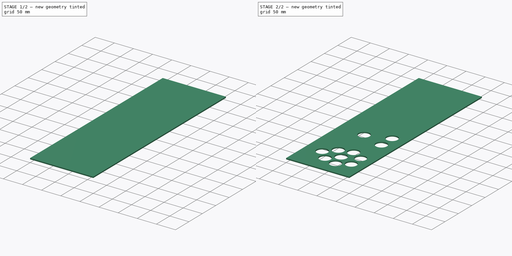
[diagram: build sequence overview — one tinted view per stage of 2, left to right]
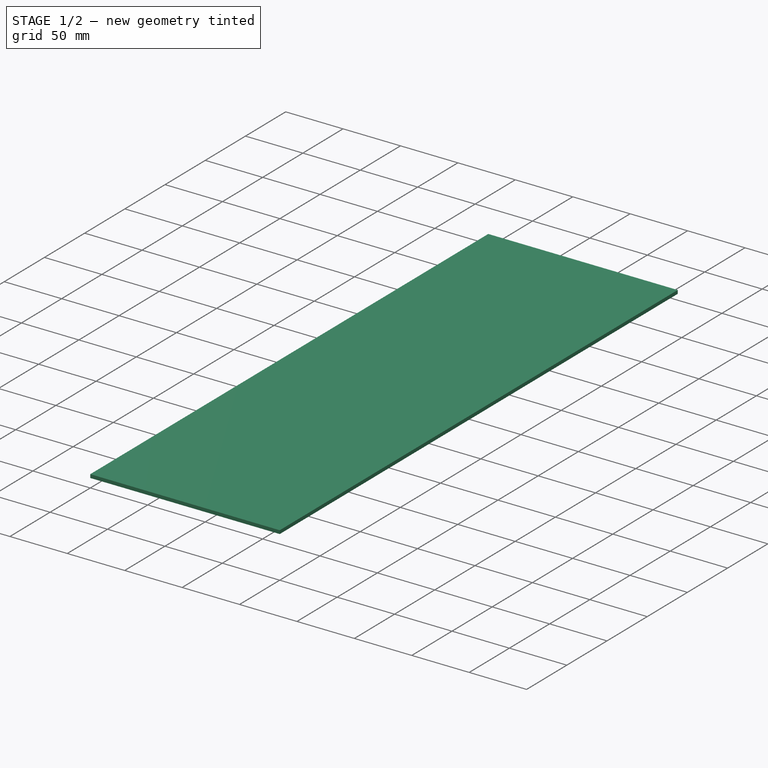
[diagram: stage 1 of 2 — iso view after this stage's code; geometry added in this stage tinted green]
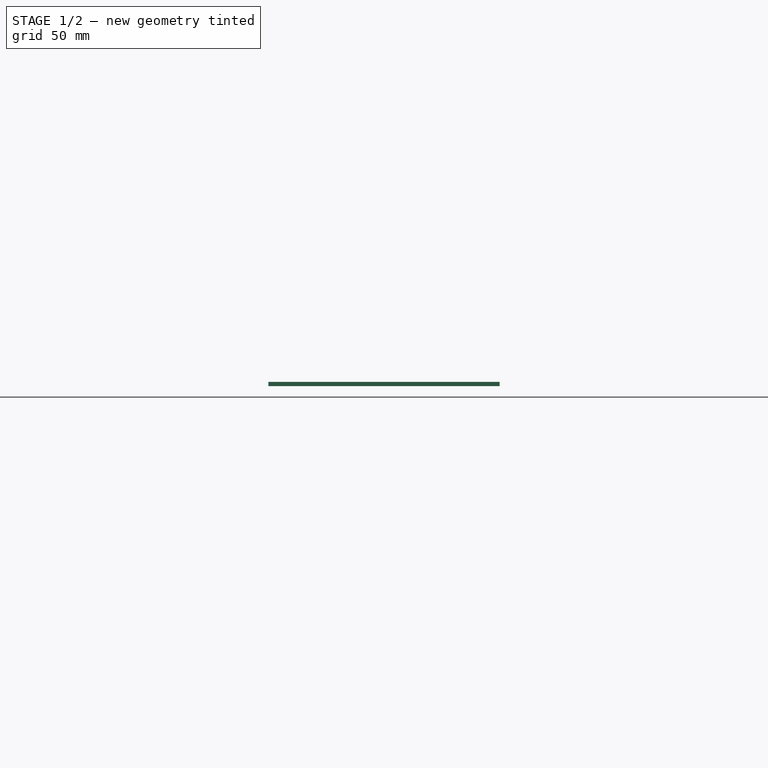
[diagram: stage 1 of 2 — front view after this stage's code; geometry added in this stage tinted green]
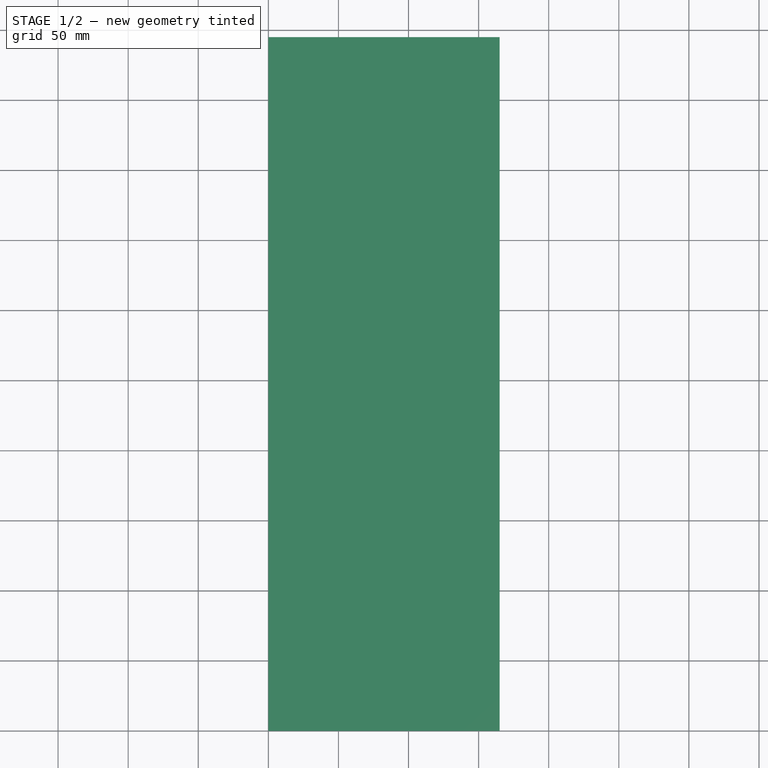
[diagram: stage 1 of 2 — top view after this stage's code; geometry added in this stage tinted green]
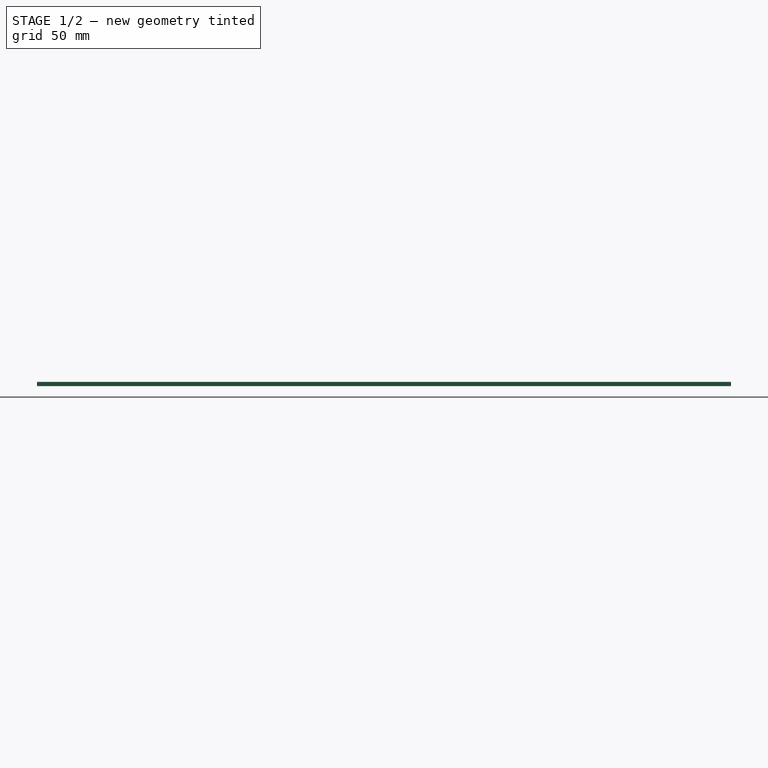
[diagram: stage 1 of 2 — right view after this stage's code; geometry added in this stage tinted green]
FCSTD DOCUMENT  (FreeCAD 0.20R29177 (Git))
Label: 1001_keyboard_500_3_Duo_LASER
License: All rights reserved
LicenseURL: http://en.wikipedia.org/wiki/All_rights_reserved
objects: Sketcher::SketchObject×2, PartDesign::Pad×1, PartDesign::Pocket×1, PartDesign::Body×1
note: 7 computed .brp shape members not serialized (recipe doc carries the construction recipe); baked Part::Feature solids carry a one-line shape summary decoded from their .brp

FEATURE [Sketcher::SketchObject] Sketch
  FullyConstrained = true
  MapMode = 5
  Support = -> [XY_Plane]
  sketch-geometry (5):
    g0: LineSegment StartX=0 StartY=495 StartZ=0 EndX=165 EndY=495 EndZ=0
    g1: LineSegment StartX=165 StartY=495 StartZ=0 EndX=165 EndY=0 EndZ=0
    g2: LineSegment StartX=165 StartY=0 StartZ=0 EndX=0 EndY=0 EndZ=0
    g3: LineSegment StartX=0 StartY=0 StartZ=0 EndX=0 EndY=247.5 EndZ=0
    g4: LineSegment StartX=0 StartY=247.5 StartZ=0 EndX=0 EndY=495 EndZ=0
  constraints (14):
    c: Coincident(g0,g1)
    c: Coincident(g1,g2)
    c: Horizontal(g0)
    c: Horizontal(g2)
    c: Vertical(g1)
    c: DistanceY(g1,g1) = 495
    c: DistanceX(g0,g0) = 165
    c: Coincident(g3,g2)
    c: Coincident(g4,g0)
    c: Equal(g3,g4)
    c: Vertical(g4)
    c: Vertical(g3)
    c: Coincident(g3,g4)
    c: Coincident(g2,g-1)
FEATURE [PartDesign::Pad] Pad
  AllowMultiFace = false
  Direction = (0,0,1)
  Length = 3
  Length2 = 100
  Profile = -> Sketch
  ReferenceAxis = -> Sketch [N_Axis]
  Type = 0
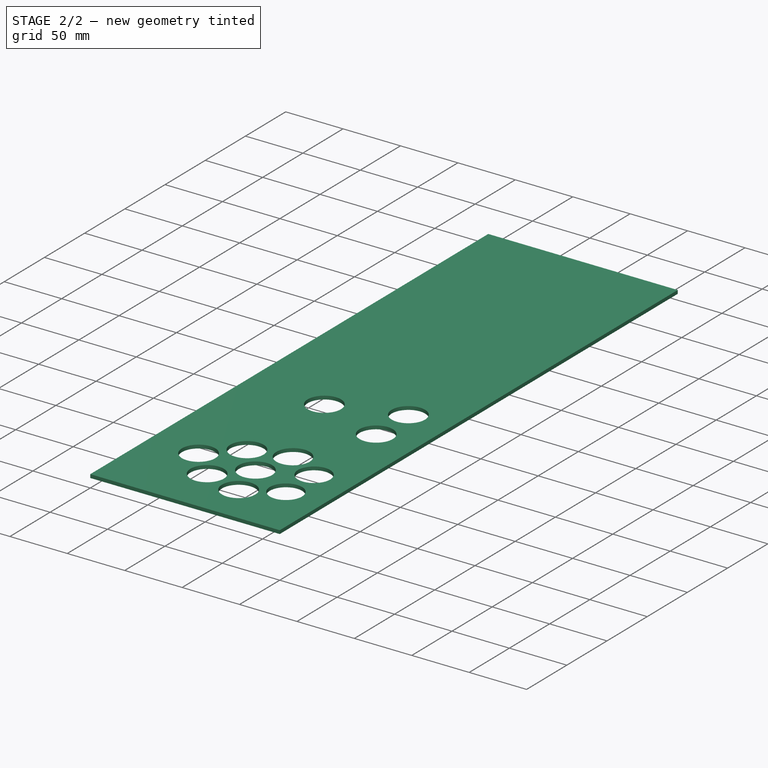
[diagram: stage 2 of 2 — iso view after this stage's code; geometry added in this stage tinted green]
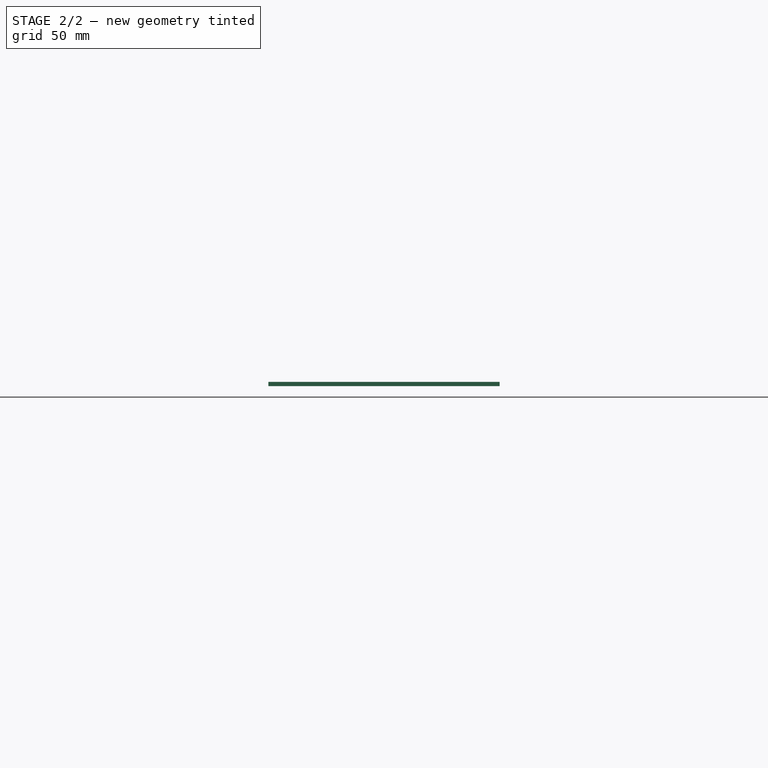
[diagram: stage 2 of 2 — front view after this stage's code; geometry added in this stage tinted green]
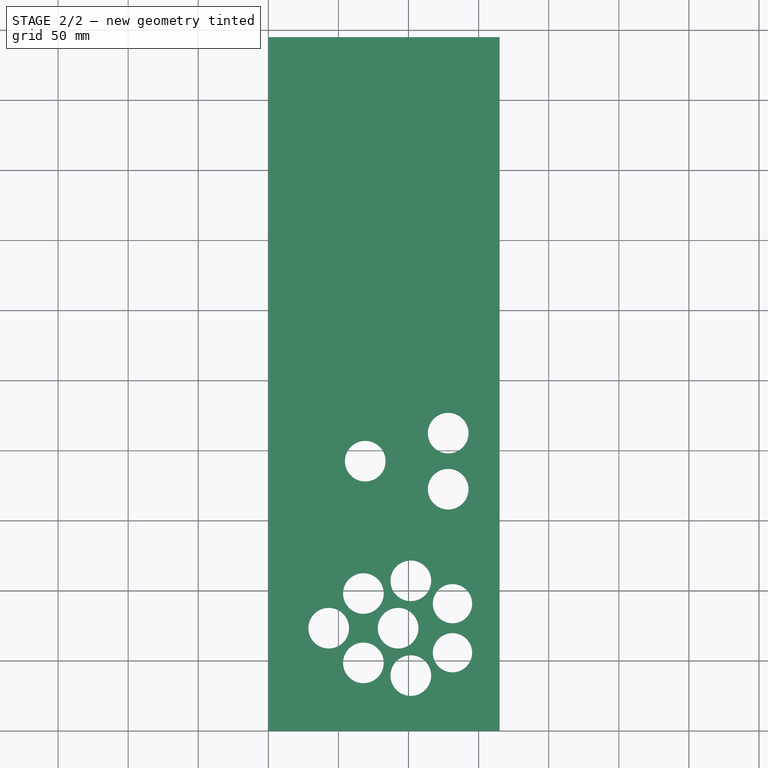
[diagram: stage 2 of 2 — top view after this stage's code; geometry added in this stage tinted green]
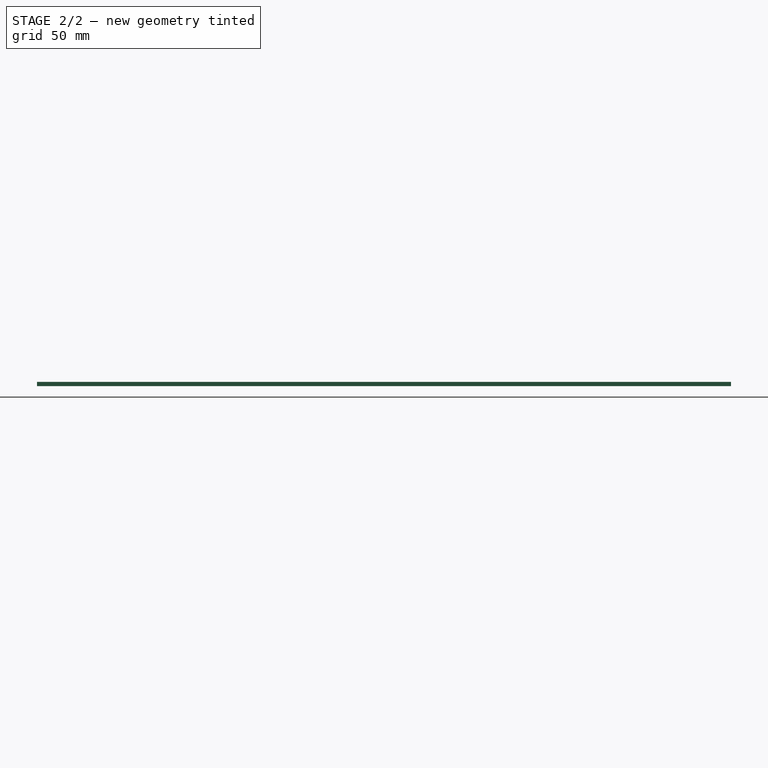
[diagram: stage 2 of 2 — right view after this stage's code; geometry added in this stage tinted green]
FEATURE [Sketcher::SketchObject] Sketch001
  FullyConstrained = false
  MapMode = 5
  Placement = pos=(0,0,3) rot=(0,0,1;0rad)
  Support = -> [Pad]
  sketch-geometry (38):
    g0: LineSegment StartX=25 StartY=0 StartZ=0 EndX=0 EndY=0 EndZ=0
    g1: LineSegment StartX=165 StartY=0 StartZ=0 EndX=25 EndY=0 EndZ=0
    g2: Circle CenterX=69.129 CenterY=192.435 CenterZ=0 NormalX=0 NormalY=0 NormalZ=1 AngleXU=0 Radius=14.5
    g3: Circle CenterX=43.0634 CenterY=73.2616 CenterZ=0 NormalX=0 NormalY=0 NormalZ=1 AngleXU=0 Radius=14.5
    g4: Circle CenterX=67.8121 CenterY=98.0103 CenterZ=0 NormalX=0 NormalY=0 NormalZ=1 AngleXU=0 Radius=14.5
    g5: Circle CenterX=67.8121 CenterY=48.5129 CenterZ=0 NormalX=0 NormalY=0 NormalZ=1 AngleXU=0 Radius=14.5
    g6: Circle CenterX=92.5609 CenterY=73.2616 CenterZ=0 NormalX=0 NormalY=0 NormalZ=1 AngleXU=0 Radius=14.5
    g7: Circle CenterX=101.62 CenterY=107.069 CenterZ=0 NormalX=0 NormalY=0 NormalZ=1 AngleXU=0 Radius=14.5
    g8: Circle CenterX=101.62 CenterY=39.4542 CenterZ=0 NormalX=0 NormalY=0 NormalZ=1 AngleXU=0 Radius=14.5
    g9: LineSegment StartX=43.0634 StartY=73.2616 StartZ=0 EndX=67.8121 EndY=98.0103 EndZ=0
    g10: LineSegment StartX=67.8121 StartY=98.0103 StartZ=0 EndX=101.62 EndY=107.069 EndZ=0
    g11: LineSegment StartX=101.62 StartY=107.069 StartZ=0 EndX=92.5609 EndY=73.2616 EndZ=0
    g12: LineSegment StartX=92.5609 StartY=73.2616 StartZ=0 EndX=67.8121 EndY=98.0103 EndZ=0
    g13: LineSegment StartX=92.5609 StartY=73.2616 StartZ=0 EndX=67.8121 EndY=48.5129 EndZ=0
    g14: LineSegment StartX=67.8121 StartY=48.5129 StartZ=0 EndX=43.0634 EndY=73.2616 EndZ=0
    g15: LineSegment StartX=67.8121 StartY=48.5129 StartZ=0 EndX=101.62 EndY=39.4542 EndZ=0
    g16: LineSegment StartX=101.62 StartY=39.4542 StartZ=0 EndX=92.5609 EndY=73.2616 EndZ=0
    g17: LineSegment StartX=67.8121 StartY=48.5129 StartZ=0 EndX=67.8121 EndY=98.0103 EndZ=0
    g18: Circle CenterX=128.286 CenterY=172.435 CenterZ=0 NormalX=0 NormalY=0 NormalZ=1 AngleXU=0 Radius=14.5
    g19: Circle CenterX=128.286 CenterY=212.435 CenterZ=0 NormalX=0 NormalY=0 NormalZ=1 AngleXU=0 Radius=14.5
    g20: Circle CenterX=131.362 CenterY=90.7616 CenterZ=0 NormalX=0 NormalY=0 NormalZ=1 AngleXU=0 Radius=14
    g21: Circle CenterX=131.362 CenterY=55.7616 CenterZ=0 NormalX=0 NormalY=0 NormalZ=1 AngleXU=0 Radius=14
    g22: LineSegment StartX=131.362 StartY=55.7616 StartZ=0 EndX=131.362 EndY=90.7616 EndZ=0
    g23: LineSegment StartX=128.286 StartY=172.435 StartZ=0 EndX=69.129 EndY=192.435 EndZ=0
    g24: LineSegment StartX=69.129 StartY=192.435 StartZ=0 EndX=128.286 EndY=212.435 EndZ=0
    g25: LineSegment StartX=43.0634 StartY=73.2616 StartZ=0 EndX=92.5609 EndY=73.2616 EndZ=0
    g26: LineSegment StartX=42.129 StartY=239.935 StartZ=0 EndX=96.129 EndY=239.935 EndZ=0
    g27: LineSegment StartX=96.129 StartY=239.935 StartZ=0 EndX=96.129 EndY=144.935 EndZ=0
    g28: LineSegment StartX=96.129 StartY=144.935 StartZ=0 EndX=42.129 EndY=144.935 EndZ=0
    g29: LineSegment StartX=42.129 StartY=144.935 StartZ=0 EndX=42.129 EndY=239.935 EndZ=0
    g30: LineSegment StartX=96.129 StartY=144.935 StartZ=0 EndX=69.129 EndY=192.435 EndZ=0
    g31: LineSegment StartX=69.129 StartY=192.435 StartZ=0 EndX=42.129 EndY=239.935 EndZ=0
    g32: LineSegment StartX=101.62 StartY=39.4542 StartZ=0 EndX=131.362 EndY=55.7616 EndZ=0
    g33: LineSegment StartX=131.362 StartY=90.7616 StartZ=0 EndX=101.62 EndY=107.069 EndZ=0
    g34: LineSegment StartX=128.286 StartY=172.435 StartZ=0 EndX=128.286 EndY=192.435 EndZ=0
    g35: LineSegment StartX=128.286 StartY=192.435 StartZ=0 EndX=128.286 EndY=212.435 EndZ=0
    g36: Circle CenterX=128.286 CenterY=192.435 CenterZ=0 NormalX=0 NormalY=0 NormalZ=1 AngleXU=0 Radius=14
    g37: LineSegment StartX=92.5609 StartY=73.2616 StartZ=0 EndX=131.362 EndY=73.2616 EndZ=0
  constraints (87):
    c: Horizontal(g0)
    c: PointOnObject(g0,g-1)
    c: Horizontal(g1)
    c: PointOnObject(g1,g-1)
    c: Equal(g3,g4)
    c: Equal(g4,g6)
    c: Equal(g6,g7)
    c: Equal(g7,g5)
    c: Equal(g6,g8)
    c: Diameter(g3) = 29
    c: Coincident(g9,g3)
    c: Coincident(g9,g4)
    c: Coincident(g10,g4)
    c: Coincident(g10,g7)
    c: Coincident(g11,g7)
    c: Coincident(g11,g6)
    c: Coincident(g12,g6)
    c: Coincident(g12,g4)
    c: Coincident(g13,g6)
    c: Coincident(g13,g5)
    c: Coincident(g14,g5)
    c: Coincident(g14,g3)
    c: Coincident(g15,g5)
    c: Coincident(g15,g8)
    c: Coincident(g16,g8)
    c: Coincident(g16,g6)
    c: Equal(g10,g11)
    c: Equal(g11,g12)
    c: Equal(g12,g9)
    c: Equal(g9,g14)
    c: Equal(g14,g13)
    c: Equal(g13,g15)
    c: Equal(g15,g16)
    c: Coincident(g17,g5)
    c: Coincident(g17,g4)
    c: Distance(g9) = 35
    c: Equal(g7,g19)
    c: Equal(g19,g18)
    c: Diameter(g20) = 28
    c: Equal(g20,g21)
    c: Coincident(g22,g21)
    c: Coincident(g22,g20)
    c: Vertical(g22)
    c: Vertical(g17)
    c: Coincident(g23,g18)
    c: Coincident(g23,g2)
    c: Coincident(g24,g2)
    c: Coincident(g24,g19)
    c: Equal(g23,g24)
    c: Equal(g19,g2)
    c: Coincident(g25,g3)
    c: Coincident(g25,g6)
    c: Coincident(g26,g27)
    c: Coincident(g27,g28)
    c: Coincident(g28,g29)
    c: Coincident(g29,g26)
    c: Horizontal(g26)
    c: Horizontal(g28)
    c: Vertical(g27)
    c: Vertical(g29)
    c: DistanceX(g26,g26) = 54
    c: DistanceY(g29,g29) = 95
    c: Coincident(g30,g27)
    c: Coincident(g30,g2)
    c: Coincident(g31,g2)
    c: Coincident(g31,g26)
    c: Equal(g31,g30)
    c: Parallel(g30,g31)
    c: Equal(g25,g17)
    c: Coincident(g32,g8)
    c: Coincident(g32,g21)
    c: Coincident(g33,g20)
    c: Coincident(g33,g7)
    c: DistanceY(g22,g22) = 35
    c: Coincident(g34,g18)
    c: Coincident(g35,g19)
    c: Vertical(g34)
    c: Equal(g34,g35)
    c: Parallel(g34,g35)
    c: Coincident(g36,g34)
    c: Diameter(g36) = 28
    c: Coincident(g36,g35)
    c: Coincident(g37,g6)
    c: PointOnObject(g37,g22)
    c: Horizontal(g37)
    c: Equal(g32,g33)
    c: DistanceY(g35,g35) = 20
FEATURE [PartDesign::Pocket] Pocket
  BaseFeature = -> Pad
  Direction = (0,0,-1)
  Length = 5
  Length2 = 5
  Profile = -> Sketch001
  ReferenceAxis = -> Sketch001 [N_Axis]
  Type = 1
FEATURE [PartDesign::Body] Body
  Group = -> [Sketch,Pad,Sketch001,Pocket]
  Origin = -> Origin
  Tip = -> Pocket
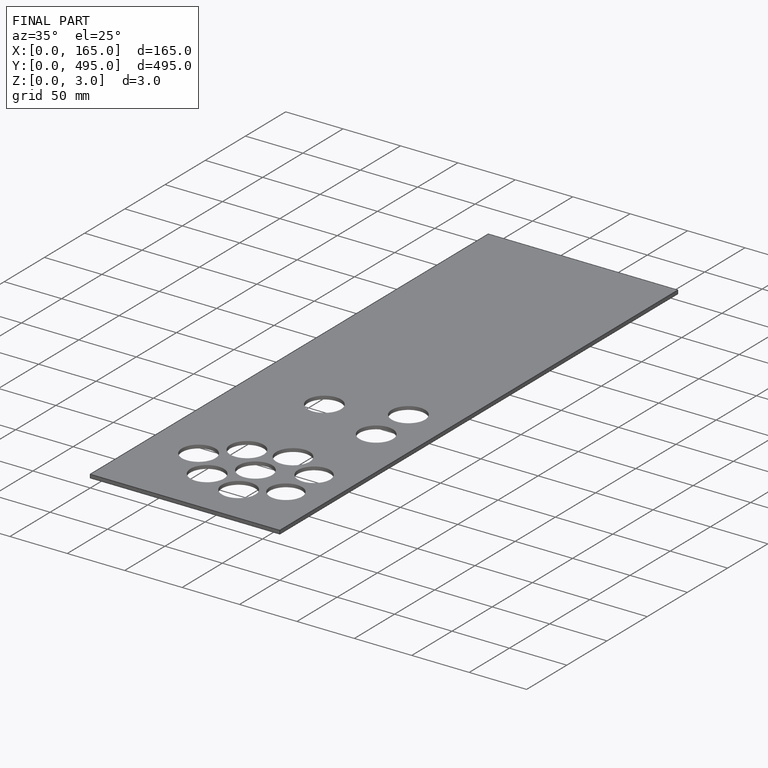
[diagram: finished part — iso view with bounding-box wireframe]
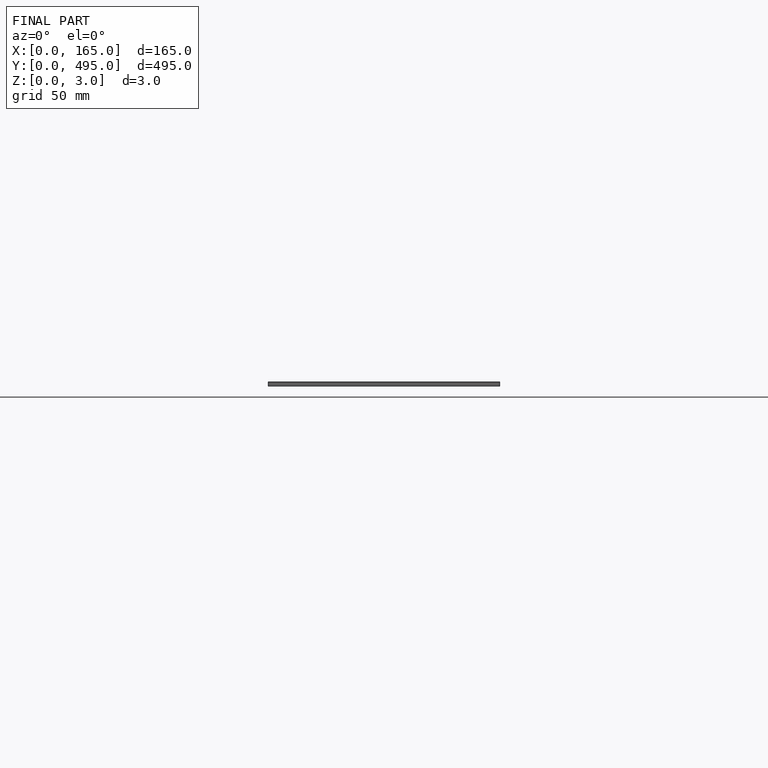
[diagram: finished part — front view with bounding-box wireframe]
